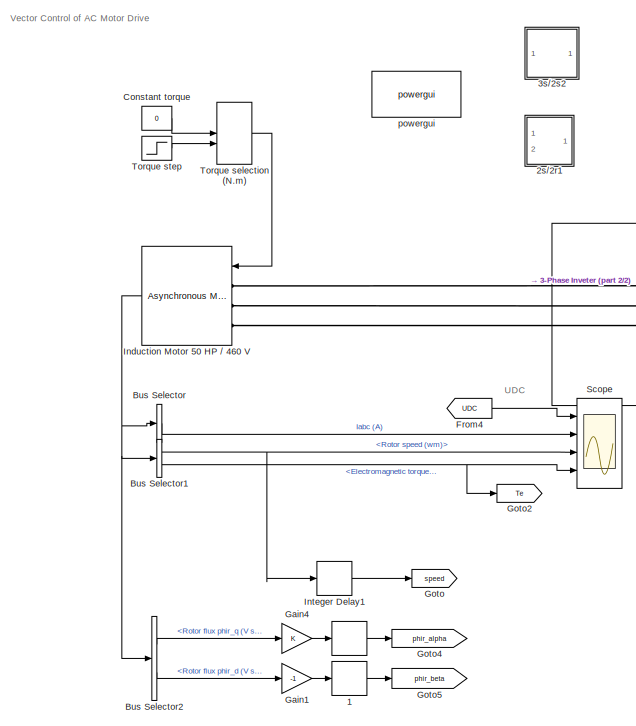
[diagram: root canvas - part 1/2, left side, full height]
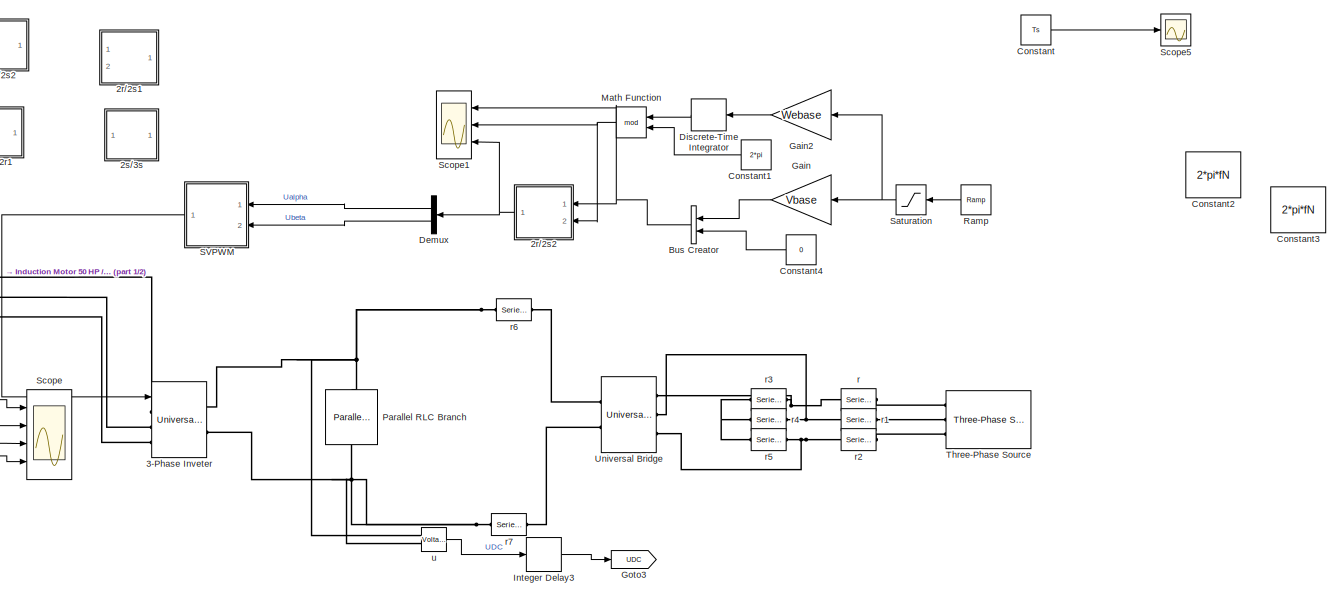
[diagram: root canvas - part 2/2, center side, full height]
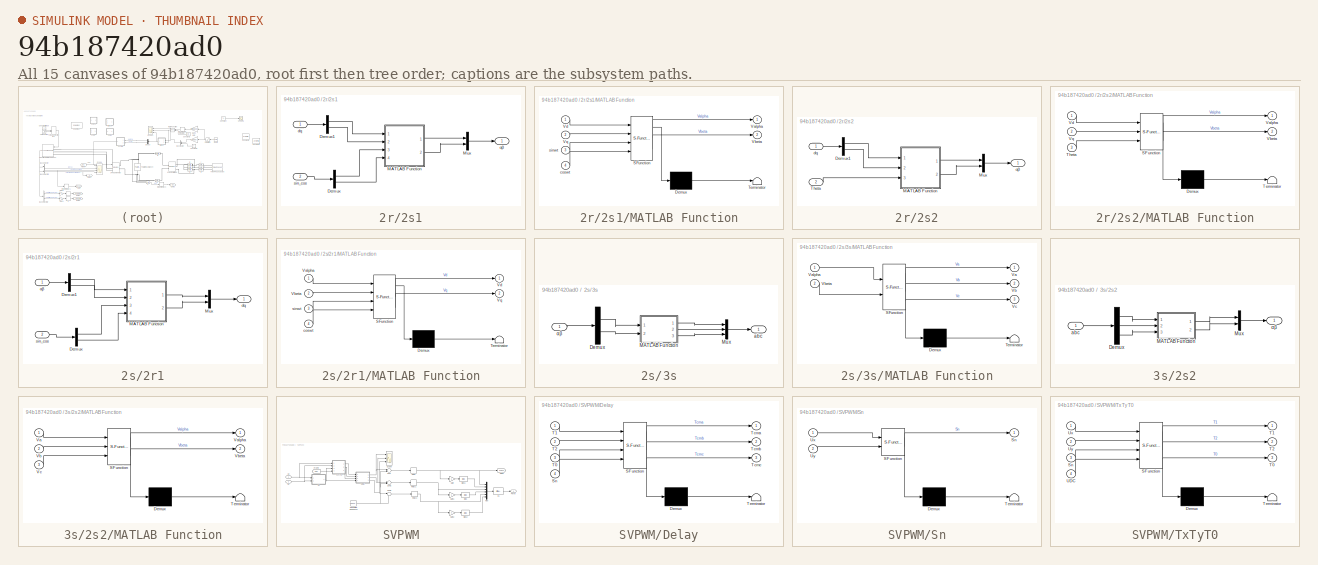
[diagram: thumbnail index - all 15 canvases of the model, root first then tree order]
MODEL slx_94b187420ad0
KIND model
CONFIG AbsTol = auto
CONFIG EnableMultiTasking = off
CONFIG FixedStep = Ts
CONFIG InitFcn = Ts=1e-6;\n%resolute=100;\n\nrun('MotorParamInit_IM.m');\n\n\n
CONFIG MaxStep = auto
CONFIG MinStep = auto
CONFIG PreLoadFcn = %MotorParamInit_IM.m;
CONFIG RelTol = 1e-3
CONFIG SampleTimeConstraint = Unconstrained
CONFIG Solver = ode23
CONFIG SolverName = ode23
CONFIG StartTime = 0.0
CONFIG StopTime = 20e-3*5
BLOCK [Delay]  
  InitialCondition = 0
  InputPortMap = u0
  Ports = [1, 1]
  SampleTime = Ts
BLOCK [Delay]  1
  InitialCondition = 0
  InputPortMap = u0
  Ports = [1, 1]
  SampleTime = Ts
BLOCK [SubSystem] 2r//2s1
  Ports = [2, 1]
  RequestExecContextInheritance = off
BLOCK [Demux] 2r//2s1/Demux
  DisplayOption = bar
  Outputs = 2
  Ports = [1, 2]
BLOCK [Demux] 2r//2s1/Demux1
  DisplayOption = bar
  Outputs = 2
  Ports = [1, 2]
BLOCK [SubSystem] 2r//2s1/MATLAB Function
  ErrorFcn = Stateflow.Translate.translate
  PermitHierarchicalResolution = ExplicitOnly
  Ports = [4, 2]
  RequestExecContextInheritance = off
  SFBlockType = MATLAB Function
  TreatAsAtomicUnit = on
BLOCK [Demux] 2r//2s1/MATLAB Function/ Demux 
  Outputs = 1
  Ports = [1, 1]
BLOCK [S-Function] 2r//2s1/MATLAB Function/ SFunction 
  EnableBusSupport = on
  FunctionName = sf_sfun
  PortCounts = [4 3]
  Ports = [4, 3]
  SFcnIsStateOwnerBlock = off
  SFunctionDeploymentMode = off
  Tag = Stateflow S-Function 17
BLOCK [Terminator] 2r//2s1/MATLAB Function/ Terminator 
BLOCK [Outport] 2r//2s1/MATLAB Function/Valpha
  IconDisplay = Port number
BLOCK [Outport] 2r//2s1/MATLAB Function/Vbeta
  IconDisplay = Port number
  Port = 2
BLOCK [Inport] 2r//2s1/MATLAB Function/Vd
  IconDisplay = Port number
BLOCK [Inport] 2r//2s1/MATLAB Function/Vq
  IconDisplay = Port number
  Port = 2
BLOCK [Inport] 2r//2s1/MATLAB Function/coswt
  IconDisplay = Port number
  Port = 4
BLOCK [Inport] 2r//2s1/MATLAB Function/sinwt
  IconDisplay = Port number
  Port = 3
BLOCK [Mux] 2r//2s1/Mux
  DisplayOption = bar
  Inputs = 2
  Ports = [2, 1]
BLOCK [Inport] 2r//2s1/dq
  IconDisplay = Port number
BLOCK [Inport] 2r//2s1/sin_cos
  IconDisplay = Port number
  Port = 2
BLOCK [Outport] 2r//2s1/αβ
  IconDisplay = Port number
BLOCK [SubSystem] 2r//2s2
  Ports = [2, 1]
  RequestExecContextInheritance = off
BLOCK [Demux] 2r//2s2/Demux1
  DisplayOption = bar
  Outputs = 2
  Ports = [1, 2]
BLOCK [SubSystem] 2r//2s2/MATLAB Function
  ErrorFcn = Stateflow.Translate.translate
  PermitHierarchicalResolution = ExplicitOnly
  Ports = [3, 2]
  RequestExecContextInheritance = off
  SFBlockType = MATLAB Function
  TreatAsAtomicUnit = on
BLOCK [Demux] 2r//2s2/MATLAB Function/ Demux 
  Outputs = 1
  Ports = [1, 1]
BLOCK [S-Function] 2r//2s2/MATLAB Function/ SFunction 
  EnableBusSupport = on
  FunctionName = sf_sfun
  PortCounts = [3 3]
  Ports = [3, 3]
  SFcnIsStateOwnerBlock = off
  SFunctionDeploymentMode = off
  Tag = Stateflow S-Function 2
BLOCK [Terminator] 2r//2s2/MATLAB Function/ Terminator 
BLOCK [Inport] 2r//2s2/MATLAB Function/Theta
  IconDisplay = Port number
  Port = 3
BLOCK [Outport] 2r//2s2/MATLAB Function/Valpha
  IconDisplay = Port number
BLOCK [Outport] 2r//2s2/MATLAB Function/Vbeta
  IconDisplay = Port number
  Port = 2
BLOCK [Inport] 2r//2s2/MATLAB Function/Vd
  IconDisplay = Port number
BLOCK [Inport] 2r//2s2/MATLAB Function/Vq
  IconDisplay = Port number
  Port = 2
BLOCK [Mux] 2r//2s2/Mux
  DisplayOption = bar
  Inputs = 2
  Ports = [2, 1]
BLOCK [Inport] 2r//2s2/Theta
  IconDisplay = Port number
  Port = 2
BLOCK [Inport] 2r//2s2/dq
  IconDisplay = Port number
BLOCK [Outport] 2r//2s2/αβ
  IconDisplay = Port number
BLOCK [SubSystem] 2s//2r1
  Ports = [2, 1]
  RequestExecContextInheritance = off
BLOCK [Demux] 2s//2r1/Demux
  DisplayOption = bar
  Outputs = 2
  Ports = [1, 2]
BLOCK [Demux] 2s//2r1/Demux1
  DisplayOption = bar
  Outputs = 2
  Ports = [1, 2]
BLOCK [SubSystem] 2s//2r1/MATLAB Function
  ErrorFcn = Stateflow.Translate.translate
  PermitHierarchicalResolution = ExplicitOnly
  Ports = [4, 2]
  RequestExecContextInheritance = off
  SFBlockType = MATLAB Function
  TreatAsAtomicUnit = on
BLOCK [Demux] 2s//2r1/MATLAB Function/ Demux 
  Outputs = 1
  Ports = [1, 1]
BLOCK [S-Function] 2s//2r1/MATLAB Function/ SFunction 
  EnableBusSupport = on
  FunctionName = sf_sfun
  PortCounts = [4 3]
  Ports = [4, 3]
  SFcnIsStateOwnerBlock = off
  SFunctionDeploymentMode = off
  Tag = Stateflow S-Function 18
BLOCK [Terminator] 2s//2r1/MATLAB Function/ Terminator 
BLOCK [Inport] 2s//2r1/MATLAB Function/Valpha
  IconDisplay = Port number
BLOCK [Inport] 2s//2r1/MATLAB Function/Vbeta
  IconDisplay = Port number
  Port = 2
BLOCK [Outport] 2s//2r1/MATLAB Function/Vd
  IconDisplay = Port number
BLOCK [Outport] 2s//2r1/MATLAB Function/Vq
  IconDisplay = Port number
  Port = 2
BLOCK [Inport] 2s//2r1/MATLAB Function/coswt
  IconDisplay = Port number
  Port = 4
BLOCK [Inport] 2s//2r1/MATLAB Function/sinwt
  IconDisplay = Port number
  Port = 3
BLOCK [Mux] 2s//2r1/Mux
  DisplayOption = bar
  Inputs = 2
  Ports = [2, 1]
BLOCK [Outport] 2s//2r1/dq
  IconDisplay = Port number
BLOCK [Inport] 2s//2r1/sin_cos
  IconDisplay = Port number
  Port = 2
BLOCK [Inport] 2s//2r1/αβ
  IconDisplay = Port number
BLOCK [SubSystem] 2s//3s
  Ports = [1, 1]
  RequestExecContextInheritance = off
BLOCK [Demux] 2s//3s/Demux
  DisplayOption = bar
  Outputs = 2
  Ports = [1, 2]
BLOCK [SubSystem] 2s//3s/MATLAB Function
  ErrorFcn = Stateflow.Translate.translate
  PermitHierarchicalResolution = ExplicitOnly
  Ports = [2, 3]
  RequestExecContextInheritance = off
  SFBlockType = MATLAB Function
  TreatAsAtomicUnit = on
BLOCK [Demux] 2s//3s/MATLAB Function/ Demux 
  Outputs = 1
  Ports = [1, 1]
BLOCK [S-Function] 2s//3s/MATLAB Function/ SFunction 
  EnableBusSupport = on
  FunctionName = sf_sfun
  PortCounts = [2 4]
  Ports = [2, 4]
  SFcnIsStateOwnerBlock = off
  SFunctionDeploymentMode = off
  Tag = Stateflow S-Function 6
BLOCK [Terminator] 2s//3s/MATLAB Function/ Terminator 
BLOCK [Outport] 2s//3s/MATLAB Function/Va
  IconDisplay = Port number
BLOCK [Inport] 2s//3s/MATLAB Function/Valpha
  IconDisplay = Port number
BLOCK [Outport] 2s//3s/MATLAB Function/Vb
  IconDisplay = Port number
  Port = 2
BLOCK [Inport] 2s//3s/MATLAB Function/Vbeta
  IconDisplay = Port number
  Port = 2
BLOCK [Outport] 2s//3s/MATLAB Function/Vc
  IconDisplay = Port number
  Port = 3
BLOCK [Mux] 2s//3s/Mux
  DisplayOption = bar
  Inputs = 3
  Ports = [3, 1]
BLOCK [Outport] 2s//3s/abc
  IconDisplay = Port number
BLOCK [Inport] 2s//3s/αβ
  IconDisplay = Port number
BLOCK [Reference] 3-Phase Inveter  REF=powerlib/Power
Electronics/Universal Bridge
  Ports = [1, 0, 0, 0, 0, 3, 2]
  SourceBlock = powerlib/Power\nElectronics/Universal Bridge
  SourceProductBaseCode = PS
  SourceProductName = Simscape Electrical
  SourceType = Universal Bridge
BLOCK [SubSystem] 3s//2s2
  Ports = [1, 1]
  RequestExecContextInheritance = off
BLOCK [Demux] 3s//2s2/Demux
  DisplayOption = bar
  Outputs = 3
  Ports = [1, 3]
BLOCK [SubSystem] 3s//2s2/MATLAB Function
  ErrorFcn = Stateflow.Translate.translate
  PermitHierarchicalResolution = ExplicitOnly
  Ports = [3, 2]
  RequestExecContextInheritance = off
  SFBlockType = MATLAB Function
  TreatAsAtomicUnit = on
BLOCK [Demux] 3s//2s2/MATLAB Function/ Demux 
  Outputs = 1
  Ports = [1, 1]
BLOCK [S-Function] 3s//2s2/MATLAB Function/ SFunction 
  EnableBusSupport = on
  FunctionName = sf_sfun
  PortCounts = [3 3]
  Ports = [3, 3]
  SFcnIsStateOwnerBlock = off
  SFunctionDeploymentMode = off
  Tag = Stateflow S-Function 8
BLOCK [Terminator] 3s//2s2/MATLAB Function/ Terminator 
BLOCK [Inport] 3s//2s2/MATLAB Function/Va
  IconDisplay = Port number
BLOCK [Outport] 3s//2s2/MATLAB Function/Valpha
  IconDisplay = Port number
BLOCK [Inport] 3s//2s2/MATLAB Function/Vb
  IconDisplay = Port number
  Port = 2
BLOCK [Outport] 3s//2s2/MATLAB Function/Vbeta
  IconDisplay = Port number
  Port = 2
BLOCK [Inport] 3s//2s2/MATLAB Function/Vc
  IconDisplay = Port number
  Port = 3
BLOCK [Mux] 3s//2s2/Mux
  DisplayOption = bar
  Inputs = 2
  Ports = [2, 1]
BLOCK [Inport] 3s//2s2/abc
  IconDisplay = Port number
BLOCK [Outport] 3s//2s2/αβ
  IconDisplay = Port number
BLOCK [BusCreator] Bus Creator
  DisplayOption = bar
  InheritFromInputs = on
  Inputs = 2
  Ports = [2, 1]
BLOCK [BusSelector] Bus Selector
  OutputAsBus = on
  OutputSignals = Stator measurements.Stator current is_a (A),Stator measurements.Stator current is_b (A),Stator measurements.Stator current is_c (A)
  Ports = [1, 1]
BLOCK [BusSelector] Bus Selector1
  OutputAsBus = off
  OutputSignals = Mechanical.Rotor speed (wm),Mechanical.Electromagnetic torque Te (N*m)
  Ports = [1, 2]
BLOCK [BusSelector] Bus Selector2
  OutputAsBus = off
  OutputSignals = Rotor measurements.Rotor flux phir_q (V s),Rotor measurements.Rotor flux phir_d (V s)
  Ports = [1, 2]
BLOCK [Constant] Constant
  Value = Ts
BLOCK [Constant] Constant torque
  SampleTime = Ts
  Value = 0
BLOCK [Constant] Constant1
  Value = 2*pi
BLOCK [Constant] Constant2
  Value = 2*pi*fN
BLOCK [Constant] Constant3
  Value = 2*pi*fN
BLOCK [Constant] Constant4
  Value = 0
BLOCK [Demux] Demux
  DisplayOption = bar
  Outputs = 2
  Ports = [1, 2]
BLOCK [DiscreteIntegrator] Discrete-Time Integrator
  ICPrevOutput = DiscIntNeverNeededParam
  ICPrevScaledInput = DiscIntNeverNeededParam
  InitialConditionSetting = Auto
  Ports = [1, 1]
  SampleTime = Ts
BLOCK [From] From4
  CloseFcn = tagdialog Close
  GotoTag = UDC
  TagVisibility = global
BLOCK [Gain] Gain
  Gain = Vbase
  OutDataTypeStr = Inherit: Inherit via internal rule
  ParamDataTypeStr = Inherit: Inherit via internal rule
  SaturateOnIntegerOverflow = off
BLOCK [Gain] Gain1
  Gain = -1
  OutDataTypeStr = Inherit: Inherit via internal rule
  ParamDataTypeStr = Inherit: Inherit via internal rule
  SaturateOnIntegerOverflow = off
BLOCK [Gain] Gain2
  Gain = Webase
  OutDataTypeStr = Inherit: Inherit via internal rule
  ParamDataTypeStr = Inherit: Inherit via internal rule
  SaturateOnIntegerOverflow = off
BLOCK [Gain] Gain4
  OutDataTypeStr = Inherit: Inherit via internal rule
  ParamDataTypeStr = Inherit: Inherit via internal rule
  SaturateOnIntegerOverflow = off
BLOCK [Goto] Goto
  GotoTag = speed
  TagVisibility = global
BLOCK [Goto] Goto2
  GotoTag = Te
  TagVisibility = global
BLOCK [Goto] Goto3
  GotoTag = UDC
  TagVisibility = global
BLOCK [Goto] Goto4
  GotoTag = phir_alpha
  TagVisibility = global
BLOCK [Goto] Goto5
  GotoTag = phir_beta
  TagVisibility = global
BLOCK [Reference] Induction Motor 50 HP // 460 V  REF=powerlib/Machines/Asynchronous Machine
SI Units
  AttributesFormatString = \n
  Ports = [1, 1, 0, 0, 0, 3]
  SourceBlock = powerlib/Machines/Asynchronous Machine\nSI Units
  SourceProductBaseCode = PS
  SourceProductName = Simscape Electrical
  SourceType = Asynchronous Machine
BLOCK [Delay] Integer Delay1
  InitialCondition = 0
  InputPortMap = u0
  Ports = [1, 1]
  SampleTime = Ts
BLOCK [Delay] Integer Delay3
  DelayLength = 1
  InitialCondition = 0
  InputPortMap = u0
  Ports = [1, 1]
  SampleTime = Ts
BLOCK [Math] Math Function
  Operator = mod
  Ports = [2, 1]
  SignedPower = off
BLOCK [Reference] Parallel RLC Branch  REF=powerlib/Elements/Parallel RLC Branch
  AttributesFormatString = \n
  Ports = [0, 0, 0, 0, 0, 1, 1]
  SourceBlock = powerlib/Elements/Parallel RLC Branch
  SourceProductBaseCode = PS
  SourceProductName = Simscape Electrical
  SourceType = Parallel RLC Branch
BLOCK [Reference] Ramp  REF=simulink/Sources/Ramp
  Ports = [0, 1]
  SourceBlock = simulink/Sources/Ramp
  SourceProductBaseCode = SL
  SourceProductName = Simulink
  SourceType = Ramp
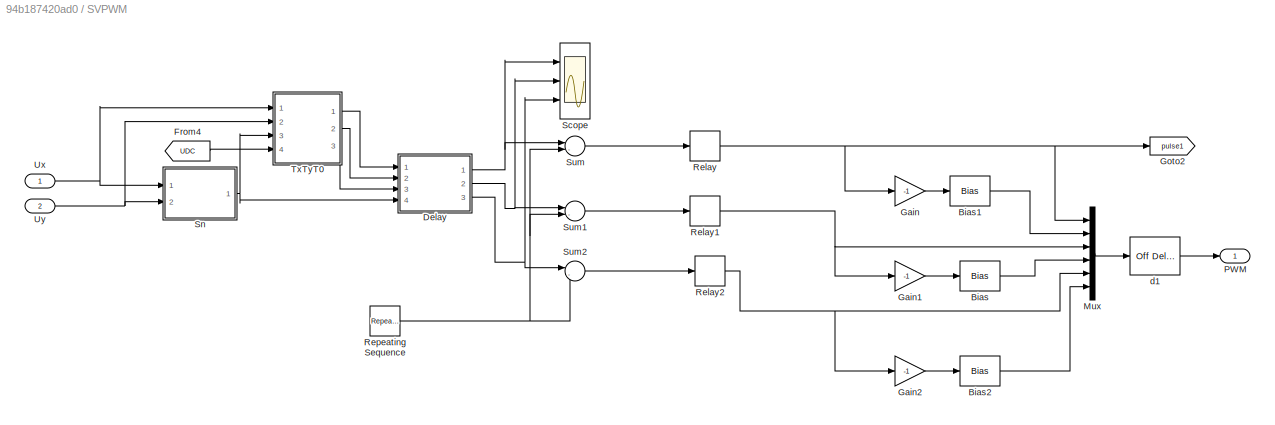
BLOCK [SubSystem] SVPWM
  Ports = [2, 1]
  RequestExecContextInheritance = off
BLOCK [Bias] SVPWM/Bias
  Bias = 1
  SaturateOnIntegerOverflow = off
BLOCK [Bias] SVPWM/Bias1
  Bias = 1
  SaturateOnIntegerOverflow = off
BLOCK [Bias] SVPWM/Bias2
  Bias = 1
  SaturateOnIntegerOverflow = off
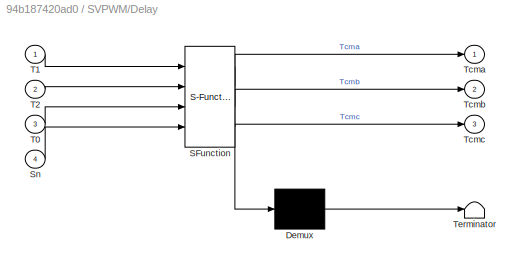
BLOCK [SubSystem] SVPWM/Delay
  ErrorFcn = Stateflow.Translate.translate
  PermitHierarchicalResolution = ExplicitOnly
  Ports = [4, 3]
  RequestExecContextInheritance = off
  SFBlockType = MATLAB Function
  TreatAsAtomicUnit = on
BLOCK [Demux] SVPWM/Delay/ Demux 
  Outputs = 1
  Ports = [1, 1]
BLOCK [S-Function] SVPWM/Delay/ SFunction 
  EnableBusSupport = on
  FunctionName = sf_sfun
  PortCounts = [4 4]
  Ports = [4, 4]
  SFcnIsStateOwnerBlock = off
  SFunctionDeploymentMode = off
  Tag = Stateflow S-Function 4
BLOCK [Terminator] SVPWM/Delay/ Terminator 
BLOCK [Inport] SVPWM/Delay/Sn
  IconDisplay = Port number
  Port = 4
BLOCK [Inport] SVPWM/Delay/T0
  IconDisplay = Port number
  Port = 3
BLOCK [Inport] SVPWM/Delay/T1
  IconDisplay = Port number
BLOCK [Inport] SVPWM/Delay/T2
  IconDisplay = Port number
  Port = 2
BLOCK [Outport] SVPWM/Delay/Tcma
  IconDisplay = Port number
BLOCK [Outport] SVPWM/Delay/Tcmb
  IconDisplay = Port number
  Port = 2
BLOCK [Outport] SVPWM/Delay/Tcmc
  IconDisplay = Port number
  Port = 3
BLOCK [From] SVPWM/From4
  CloseFcn = tagdialog Close
  GotoTag = UDC
  TagVisibility = global
BLOCK [Gain] SVPWM/Gain
  Gain = -1
  OutDataTypeStr = Inherit: Inherit via internal rule
  ParamDataTypeStr = Inherit: Inherit via internal rule
  SaturateOnIntegerOverflow = off
BLOCK [Gain] SVPWM/Gain1
  Gain = -1
  OutDataTypeStr = Inherit: Inherit via internal rule
  ParamDataTypeStr = Inherit: Inherit via internal rule
  SaturateOnIntegerOverflow = off
BLOCK [Gain] SVPWM/Gain2
  Gain = -1
  OutDataTypeStr = Inherit: Inherit via internal rule
  ParamDataTypeStr = Inherit: Inherit via internal rule
  SaturateOnIntegerOverflow = off
BLOCK [Goto] SVPWM/Goto2
  GotoTag = pulse1
  TagVisibility = global
BLOCK [Mux] SVPWM/Mux
  DisplayOption = bar
  Inputs = 6
  Ports = [6, 1]
BLOCK [Outport] SVPWM/PWM
  IconDisplay = Port number
BLOCK [Relay] SVPWM/Relay
  OffSwitchValue = 0
  OnSwitchValue = 0
BLOCK [Relay] SVPWM/Relay1
  OffSwitchValue = 0
  OnSwitchValue = 0
BLOCK [Relay] SVPWM/Relay2
  OffSwitchValue = 0
  OnSwitchValue = 0
BLOCK [Reference] SVPWM/Repeating Sequence  REF=simulink/Sources/Repeating
Sequence
  Ports = [0, 1]
  SourceBlock = simulink/Sources/Repeating\nSequence
  SourceProductBaseCode = SL
  SourceProductName = Simulink
  SourceType = Repeating table
BLOCK [Scope] SVPWM/Scope
  Floating = off
  NumInputPorts = 3
  Ports = [3]
  ScopeSpecificationString = Simulink.scopes.TimeScopeBlockCfg('CurrentConfiguration', extmgr.ConfigurationSet(extmgr.Configuration('Core','General UI',true),extmgr.Configuration('Core','Source UI',true),extmgr.Configuration('Sources','WiredSimulink',true,'DataLoggingVariableName','ScopeData16','DataLoggingSaveFormat','StructureWithTime','DataLoggingDecimation','1','DataLoggingDecimateData',true),extmgr.Configuration('Visuals...<+3052ch>
BLOCK [SubSystem] SVPWM/Sn
  ErrorFcn = Stateflow.Translate.translate
  PermitHierarchicalResolution = ExplicitOnly
  Ports = [2, 1]
  RequestExecContextInheritance = off
  SFBlockType = MATLAB Function
  TreatAsAtomicUnit = on
BLOCK [Demux] SVPWM/Sn/ Demux 
  Outputs = 1
  Ports = [1, 1]
BLOCK [S-Function] SVPWM/Sn/ SFunction 
  EnableBusSupport = on
  FunctionName = sf_sfun
  PortCounts = [2 2]
  Ports = [2, 2]
  SFcnIsStateOwnerBlock = off
  SFunctionDeploymentMode = off
  Tag = Stateflow S-Function 1
BLOCK [Terminator] SVPWM/Sn/ Terminator 
BLOCK [Outport] SVPWM/Sn/Sn
  IconDisplay = Port number
BLOCK [Inport] SVPWM/Sn/Ux
  IconDisplay = Port number
BLOCK [Inport] SVPWM/Sn/Uy
  IconDisplay = Port number
  Port = 2
BLOCK [Sum] SVPWM/Sum
  IconShape = round
  InputSameDT = off
  Inputs = |-+
  OutDataTypeStr = Inherit: Inherit via internal rule
  Ports = [2, 1]
  SaturateOnIntegerOverflow = off
BLOCK [Sum] SVPWM/Sum1
  IconShape = round
  InputSameDT = off
  Inputs = |-+
  OutDataTypeStr = Inherit: Inherit via internal rule
  Ports = [2, 1]
  SaturateOnIntegerOverflow = off
BLOCK [Sum] SVPWM/Sum2
  IconShape = round
  InputSameDT = off
  Inputs = |-+
  OutDataTypeStr = Inherit: Inherit via internal rule
  Ports = [2, 1]
  SaturateOnIntegerOverflow = off
BLOCK [SubSystem] SVPWM/TxTyT0
  ErrorFcn = Stateflow.Translate.translate
  PermitHierarchicalResolution = ExplicitOnly
  Ports = [4, 3]
  RequestExecContextInheritance = off
  SFBlockType = MATLAB Function
  TreatAsAtomicUnit = on
BLOCK [Demux] SVPWM/TxTyT0/ Demux 
  Outputs = 1
  Ports = [1, 1]
BLOCK [S-Function] SVPWM/TxTyT0/ SFunction 
  EnableBusSupport = on
  FunctionName = sf_sfun
  PortCounts = [4 4]
  Ports = [4, 4]
  SFcnIsStateOwnerBlock = off
  SFunctionDeploymentMode = off
  Tag = Stateflow S-Function 3
BLOCK [Terminator] SVPWM/TxTyT0/ Terminator 
BLOCK [Inport] SVPWM/TxTyT0/Sn
  IconDisplay = Port number
  Port = 3
BLOCK [Outport] SVPWM/TxTyT0/T0
  IconDisplay = Port number
  Port = 3
BLOCK [Outport] SVPWM/TxTyT0/T1
  IconDisplay = Port number
BLOCK [Outport] SVPWM/TxTyT0/T2
  IconDisplay = Port number
  Port = 2
BLOCK [Inport] SVPWM/TxTyT0/UDC
  IconDisplay = Port number
  Port = 4
BLOCK [Inport] SVPWM/TxTyT0/Ux
  IconDisplay = Port number
BLOCK [Inport] SVPWM/TxTyT0/Uy
  IconDisplay = Port number
  Port = 2
BLOCK [Inport] SVPWM/Ux
  IconDisplay = Port number
BLOCK [Inport] SVPWM/Uy
  IconDisplay = Port number
  Port = 2
BLOCK [Reference] SVPWM/d1  REF=powerlib_extras/Discrete 
Control Blocks/Discrete
On//Off Delay
  Ports = [1, 1]
  SourceBlock = powerlib_extras/Discrete \nControl Blocks/Discrete\nOn//Off Delay
  SourceProductBaseCode = PS
  SourceProductName = Simscape Electrical
  SourceType = Discrete On/Off Delay
BLOCK [Saturate] Saturation
  InputPortMap = u0
  LowerLimit = -1
  Ports = [1, 1]
  UpperLimit = 1
BLOCK [Scope] Scope
  Floating = off
  NumInputPorts = 4
  Ports = [4]
  ScopeSpecificationString = C++SS(StrPVP('Location','[5, 34, 1925, 993]'),StrPVP('Open','off'),StrPVP('ZoomMode','yonly'),MxPVP('AxesTitles',54,'struct(''axes1'',''%<SignalLabel>'',''axes2'',''%<SignalLabel>'',''axes3'',''%<SignalLabel>'',''axes4'',''%<SignalLabel>'')'),MxPVP('ScopeGraphics',57,'struct(''FigureColor'',''[0.5 0.5 0.5]'',''AxesColor'',''[0 0 0]'',''AxesTickColor'',''[1 1 1]'',''LineColors'',''[1 1 0;1 0 1;0 1 ...<+467ch>
BLOCK [Scope] Scope1
  Floating = off
  NumInputPorts = 3
  Ports = [3]
  ScopeSpecificationString = Simulink.scopes.TimeScopeBlockCfg('CurrentConfiguration', extmgr.ConfigurationSet(extmgr.Configuration('Core','General UI',true,'FigureColor',[1 1 1]),extmgr.Configuration('Core','Source UI',true),extmgr.Configuration('Sources','WiredSimulink',true,'DataLoggingVariableName','ScopeData1'),extmgr.Configuration('Visuals','Time Domain',true,'SerializedDisplays',{struct('MinYLimReal','-38.78359','MaxYL...<+3085ch>
BLOCK [Scope] Scope5
  Floating = off
  NumInputPorts = 1
  Ports = [1]
  ScopeSpecificationString = Simulink.scopes.TimeScopeBlockCfg('CurrentConfiguration', extmgr.ConfigurationSet(extmgr.Configuration('Core','General UI',true,'FigureColor',[1 1 1]),extmgr.Configuration('Core','Source UI',true),extmgr.Configuration('Sources','WiredSimulink',true,'DataLoggingVariableName','ScopeData5'),extmgr.Configuration('Visuals','Time Domain',true,'SerializedDisplays',{struct('MinYLimReal','0.01764','MaxYLim...<+1599ch>
BLOCK [Reference] Three-Phase Source  REF=powerlib/Electrical
Sources/Three-Phase Source
  Ports = [0, 0, 0, 0, 0, 0, 3]
  SourceBlock = powerlib/Electrical\nSources/Three-Phase Source
  SourceProductBaseCode = PS
  SourceProductName = Simscape Electrical
  SourceType = Three-Phase Source
BLOCK [ManualSwitch] Torque selection (N.m)
BLOCK [Step] Torque step
  After = 5
  SampleTime = Ts
BLOCK [Reference] Universal Bridge  REF=powerlib/Power
Electronics/Universal Bridge
  Ports = [0, 0, 0, 0, 0, 3, 2]
  SourceBlock = powerlib/Power\nElectronics/Universal Bridge
  SourceProductBaseCode = PS
  SourceProductName = Simscape Electrical
  SourceType = Universal Bridge
BLOCK [Reference] powergui  REF=powerlib/powergui
  Ports = []
  Priority = 2
  SourceBlock = powerlib/powergui
  SourceProductBaseCode = PS
  SourceProductName = Simscape Electrical
  SourceType = PSB option menu block
BLOCK [Reference] r  REF=powerlib/Elements/Series RLC Branch
  Ports = [0, 0, 0, 0, 0, 1, 1]
  SourceBlock = powerlib/Elements/Series RLC Branch
  SourceProductBaseCode = PS
  SourceProductName = Simscape Electrical
  SourceType = Series RLC Branch
BLOCK [Reference] r1  REF=powerlib/Elements/Series RLC Branch
  Ports = [0, 0, 0, 0, 0, 1, 1]
  SourceBlock = powerlib/Elements/Series RLC Branch
  SourceProductBaseCode = PS
  SourceProductName = Simscape Electrical
  SourceType = Series RLC Branch
BLOCK [Reference] r2  REF=powerlib/Elements/Series RLC Branch
  Ports = [0, 0, 0, 0, 0, 1, 1]
  SourceBlock = powerlib/Elements/Series RLC Branch
  SourceProductBaseCode = PS
  SourceProductName = Simscape Electrical
  SourceType = Series RLC Branch
BLOCK [Reference] r3  REF=powerlib/Elements/Series RLC Branch
  Ports = [0, 0, 0, 0, 0, 1, 1]
  SourceBlock = powerlib/Elements/Series RLC Branch
  SourceProductBaseCode = PS
  SourceProductName = Simscape Electrical
  SourceType = Series RLC Branch
BLOCK [Reference] r4  REF=powerlib/Elements/Series RLC Branch
  Ports = [0, 0, 0, 0, 0, 1, 1]
  SourceBlock = powerlib/Elements/Series RLC Branch
  SourceProductBaseCode = PS
  SourceProductName = Simscape Electrical
  SourceType = Series RLC Branch
BLOCK [Reference] r5  REF=powerlib/Elements/Series RLC Branch
  Ports = [0, 0, 0, 0, 0, 1, 1]
  SourceBlock = powerlib/Elements/Series RLC Branch
  SourceProductBaseCode = PS
  SourceProductName = Simscape Electrical
  SourceType = Series RLC Branch
BLOCK [Reference] r6  REF=powerlib/Elements/Series RLC Branch
  Ports = [0, 0, 0, 0, 0, 1, 1]
  SourceBlock = powerlib/Elements/Series RLC Branch
  SourceProductBaseCode = PS
  SourceProductName = Simscape Electrical
  SourceType = Series RLC Branch
BLOCK [Reference] r7  REF=powerlib/Elements/Series RLC Branch
  Ports = [0, 0, 0, 0, 0, 1, 1]
  SourceBlock = powerlib/Elements/Series RLC Branch
  SourceProductBaseCode = PS
  SourceProductName = Simscape Electrical
  SourceType = Series RLC Branch
BLOCK [Reference] u  REF=powerlib/Measurements/Voltage Measurement
  AttributesFormatString = \n
  Ports = [0, 1, 0, 0, 0, 2]
  SourceBlock = powerlib/Measurements/Voltage Measurement
  SourceProductBaseCode = PS
  SourceProductName = Simscape Electrical
  SourceType = Voltage Measurement
  Tag = PoWeRsYsTeMmEaSuReMeNt
ANNOTATION (root): UDC
ANNOTATION (root): Vector Control of AC Motor Drive
LINE  1:1 -> Goto5:1
LINE  :1 -> Goto4:1
LINE 2r//2s1/Demux1:1 -> 2r//2s1/MATLAB Function:1
LINE 2r//2s1/Demux1:2 -> 2r//2s1/MATLAB Function:2
LINE 2r//2s1/Demux:1 -> 2r//2s1/MATLAB Function:3
LINE 2r//2s1/Demux:2 -> 2r//2s1/MATLAB Function:4
LINE 2r//2s1/MATLAB Function:1 -> 2r//2s1/Mux:1
LINE 2r//2s1/MATLAB Function:2 -> 2r//2s1/Mux:2
LINE 2r//2s1/Mux:1 -> 2r//2s1/αβ:1
LINE 2r//2s1/dq:1 -> 2r//2s1/Demux1:1
LINE 2r//2s1/sin_cos:1 -> 2r//2s1/Demux:1
LINE 2r//2s2/Demux1:1 -> 2r//2s2/MATLAB Function:1
LINE 2r//2s2/Demux1:2 -> 2r//2s2/MATLAB Function:2
LINE 2r//2s2/MATLAB Function:1 -> 2r//2s2/Mux:1
LINE 2r//2s2/MATLAB Function:2 -> 2r//2s2/Mux:2
LINE 2r//2s2/Mux:1 -> 2r//2s2/αβ:1
LINE 2r//2s2/Theta:1 -> 2r//2s2/MATLAB Function:3
LINE 2r//2s2/dq:1 -> 2r//2s2/Demux1:1
NET 2r//2s2:1 -> Demux:1, Scope1:3
LINE 2s//2r1/Demux1:1 -> 2s//2r1/MATLAB Function:1
LINE 2s//2r1/Demux1:2 -> 2s//2r1/MATLAB Function:2
LINE 2s//2r1/Demux:1 -> 2s//2r1/MATLAB Function:3
LINE 2s//2r1/Demux:2 -> 2s//2r1/MATLAB Function:4
LINE 2s//2r1/MATLAB Function:1 -> 2s//2r1/Mux:1
LINE 2s//2r1/MATLAB Function:2 -> 2s//2r1/Mux:2
LINE 2s//2r1/Mux:1 -> 2s//2r1/dq:1
LINE 2s//2r1/sin_cos:1 -> 2s//2r1/Demux:1
LINE 2s//2r1/αβ:1 -> 2s//2r1/Demux1:1
LINE 2s//3s/Demux:1 -> 2s//3s/MATLAB Function:1
LINE 2s//3s/Demux:2 -> 2s//3s/MATLAB Function:2
LINE 2s//3s/MATLAB Function:1 -> 2s//3s/Mux:1
LINE 2s//3s/MATLAB Function:2 -> 2s//3s/Mux:2
LINE 2s//3s/MATLAB Function:3 -> 2s//3s/Mux:3
LINE 2s//3s/Mux:1 -> 2s//3s/abc:1
LINE 2s//3s/αβ:1 -> 2s//3s/Demux:1
LINE 3s//2s2/Demux:1 -> 3s//2s2/MATLAB Function:1
LINE 3s//2s2/Demux:2 -> 3s//2s2/MATLAB Function:2
LINE 3s//2s2/Demux:3 -> 3s//2s2/MATLAB Function:3
LINE 3s//2s2/MATLAB Function:1 -> 3s//2s2/Mux:1
LINE 3s//2s2/MATLAB Function:2 -> 3s//2s2/Mux:2
LINE 3s//2s2/Mux:1 -> 3s//2s2/αβ:1
LINE 3s//2s2/abc:1 -> 3s//2s2/Demux:1
NET Bus Creator:1 -> 2r//2s2:1, Scope1:1
NET Bus Selector1:1 -> Integer Delay1:1, Scope:3
NET Bus Selector1:2 -> Goto2:1, Scope:4
LINE Bus Selector2:1 -> Gain4:1
LINE Bus Selector2:2 -> Gain1:1
LINE Bus Selector:1 -> Scope:2
LINE Constant torque:1 -> Torque selection (N.m):1
LINE Constant1:1 -> Math Function:2
LINE Constant4:1 -> Bus Creator:2
LINE Constant:1 -> Scope5:1
LINE Demux:1 -> SVPWM:1
LINE Demux:2 -> SVPWM:2
LINE Discrete-Time Integrator:1 -> Math Function:1
LINE From4:1 -> Scope:1
LINE Gain1:1 ->  1:1
LINE Gain2:1 -> Discrete-Time Integrator:1
LINE Gain4:1 ->  :1
LINE Gain:1 -> Bus Creator:1
NET Induction Motor 50 HP // 460 V:1 -> Bus Selector1:1, Bus Selector2:1, Bus Selector:1
LINE Integer Delay1:1 -> Goto:1
LINE Integer Delay3:1 -> Goto3:1
NET Math Function:1 -> 2r//2s2:2, Scope1:2
LINE Ramp:1 -> Saturation:1
LINE SVPWM/Bias1:1 -> SVPWM/Mux:2
LINE SVPWM/Bias2:1 -> SVPWM/Mux:6
LINE SVPWM/Bias:1 -> SVPWM/Mux:4
NET SVPWM/Delay:1 -> SVPWM/Scope:1, SVPWM/Sum:1
NET SVPWM/Delay:2 -> SVPWM/Scope:2, SVPWM/Sum1:1
NET SVPWM/Delay:3 -> SVPWM/Scope:3, SVPWM/Sum2:1
LINE SVPWM/From4:1 -> SVPWM/TxTyT0:4
LINE SVPWM/Gain1:1 -> SVPWM/Bias:1
LINE SVPWM/Gain2:1 -> SVPWM/Bias2:1
LINE SVPWM/Gain:1 -> SVPWM/Bias1:1
LINE SVPWM/Mux:1 -> SVPWM/d1:1
NET SVPWM/Relay1:1 -> SVPWM/Gain1:1, SVPWM/Mux:3
NET SVPWM/Relay2:1 -> SVPWM/Gain2:1, SVPWM/Mux:5
NET SVPWM/Relay:1 -> SVPWM/Gain:1, SVPWM/Goto2:1, SVPWM/Mux:1
NET SVPWM/Repeating Sequence:1 -> SVPWM/Sum1:2, SVPWM/Sum2:2, SVPWM/Sum:2
NET SVPWM/Sn:1 -> SVPWM/Delay:4, SVPWM/TxTyT0:3
LINE SVPWM/Sum1:1 -> SVPWM/Relay1:1
LINE SVPWM/Sum2:1 -> SVPWM/Relay2:1
LINE SVPWM/Sum:1 -> SVPWM/Relay:1
LINE SVPWM/TxTyT0:1 -> SVPWM/Delay:1
LINE SVPWM/TxTyT0:2 -> SVPWM/Delay:2
LINE SVPWM/TxTyT0:3 -> SVPWM/Delay:3
NET SVPWM/Ux:1 -> SVPWM/Sn:1, SVPWM/TxTyT0:1
NET SVPWM/Uy:1 -> SVPWM/Sn:2, SVPWM/TxTyT0:2
LINE SVPWM/d1:1 -> SVPWM/PWM:1
LINE SVPWM:1 -> 3-Phase Inveter:1
NET Saturation:1 -> Gain2:1, Gain:1
LINE Torque selection (N.m):1 -> Induction Motor 50 HP // 460 V:1
LINE Torque step:1 -> Torque selection (N.m):2
LINE u:1 -> Integer Delay3:1
PLINE 3-Phase Inveter:LConn1 -- Induction Motor 50 HP // 460 V:LConn1
PLINE 3-Phase Inveter:LConn2 -- Induction Motor 50 HP // 460 V:LConn2
PLINE 3-Phase Inveter:LConn3 -- Induction Motor 50 HP // 460 V:LConn3
PNET net1: 3-Phase Inveter:RConn1 -- Parallel RLC Branch:LConn1 -- r6:LConn1 -- u:LConn1
PNET net2: 3-Phase Inveter:RConn2 -- Parallel RLC Branch:RConn1 -- r7:LConn1 -- u:LConn2
PLINE Three-Phase Source:RConn1 -- r:RConn1
PLINE Three-Phase Source:RConn2 -- r1:RConn1
PLINE Three-Phase Source:RConn3 -- r2:RConn1
PNET net3: Universal Bridge:LConn1 -- r3:RConn1 -- r:LConn1
PNET net4: Universal Bridge:LConn2 -- r1:LConn1 -- r4:RConn1
PNET net5: Universal Bridge:LConn3 -- r2:LConn1 -- r5:RConn1
PLINE Universal Bridge:RConn1 -- r6:RConn1
PLINE Universal Bridge:RConn2 -- r7:RConn1
PNET net6: r3:LConn1 -- r4:LConn1 -- r5:LConn1
note: NET lines group one-source signal fan-out (src -> all destinations, sorted); 1:1 wires keep LINE; PNET lines group multi-terminal physical nets as a canonical sorted terminal list (undirected conserving connections); 2-terminal nets keep the pairwise PLINE form
CHART SVPWM/Sn states=1 transitions=1
  STATE_LABEL 'eML_blk_kernel()'
  STATE_LABEL 'SCRIPT:\nfunction Sn = S(Ux,Uy)\ntheta=atan2(Uy,Ux)*180/pi;\nif theta>=0&&theta<60\n    Sn=1;\nelseif theta>=60&&theta<120\n    Sn=2;\nelseif theta>=120&&theta<180\n    Sn=3;\nelseif theta>=-180&&theta<-120\n    Sn=4;\nelseif theta>=-120&&theta<-60\n    Sn=5;\nelse Sn=6;\nend'
CHART 2r//2s2/MATLAB Function states=1 transitions=1
  STATE_LABEL 'eML_blk_kernel()'
  STATE_LABEL 'SCRIPT:\nfunction [Valpha, Vbeta] = fcn(Vd, Vq, Theta)\n%#codegen\nsinTheta = sin(Theta);\nCosTheta = cos(Theta);\nValpha = Vd*CosTheta - Vq*sinTheta;\nVbeta  = Vd*sinTheta + Vq*CosTheta;'
CHART SVPWM/TxTyT0 states=1 transitions=1
  STATE_LABEL 'eML_blk_kernel()'
  STATE_LABEL 'SCRIPT:\nfunction [T1,T2,T0]=T(Ux,Uy,Sn,UDC)\nTs=1/5000;\nUdc=UDC;\n\nX=sqrt(3)*Ts/Udc*Uy;\nY=sqrt(3)*Ts/2/Udc*(sqrt(3)*Ux+Uy);\nZ=sqrt(3)*Ts/2/Udc*(-sqrt(3)*Ux+Uy);\n\nif Sn==1\n    T1=-Z;T2=X;\nelseif Sn==2;\n    T1=Z;T2=Y;\nelseif Sn==3;\n    T1=X;T2=-Y;\nelseif Sn==4;\n    T1=-X;T2=Z;\nelseif Sn==5;\n    T1=-Y;T2=-Z;\nelse T1=Y;T2=-X;\nend\n    \nif T1+T2>Ts\n    a=T1;b=T2;\n    T1=a*Ts/(a+b);\n    T2=b*Ts/(a+b);\nend\n...<+32ch>'
CHART SVPWM/Delay states=1 transitions=1
  STATE_LABEL 'eML_blk_kernel()'
  STATE_LABEL 'SCRIPT:\nfunction [Tcma,Tcmb,Tcmc]=D(T1,T2,T0,Sn)\nT=1/5000;\nton1=0.25*T0;\nton2=ton1+T1/2;\nton3=ton2+T2/2;\nif Sn==1\n    Tcma=ton1;Tcmb=ton2;Tcmc=ton3;\nelseif Sn==2;\n    Tcma=ton2;Tcmb=ton1;Tcmc=ton3;\nelseif Sn==3;\n    Tcma=ton3;Tcmb=ton1;Tcmc=ton2;\nelseif Sn==4;\n    Tcma=ton3;Tcmb=ton2;Tcmc=ton1;\nelseif Sn==5;\n    Tcma=ton2;Tcmb=ton3;Tcmc=ton1;\nelse Tcma=ton1;Tcmb=ton3;Tcmc=ton2;\nend\n        \n      ...<+3ch>'
CHART 2s//3s/MATLAB Function states=1 transitions=1
  STATE_LABEL 'eML_blk_kernel()'
  STATE_LABEL 'SCRIPT:\nfunction [Va, Vb, Vc] = Park(Valpha, Vbeta)\n%#codegen\nVa = sqrt(2/3)*Valpha;\nVb = -Valpha/sqrt(6) + Vbeta/sqrt(2);\nVc = -Valpha/sqrt(6) - Vbeta/sqrt(2);'
CHART 3s//2s2/MATLAB Function states=1 transitions=1
  STATE_LABEL 'eML_blk_kernel()'
  STATE_LABEL 'SCRIPT:\nfunction [Valpha, Vbeta] = Park(Va, Vb, Vc)\n%#codegen\nValpha = sqrt(2/3)*(Va - Vb/2 -Vc/2);\nVbeta  = sqrt(2/3)*(sqrt(3)*Vb/2 - sqrt(3)*Vc/2);'
CHART 2r//2s1/MATLAB Function states=1 transitions=1
  STATE_LABEL 'eML_blk_kernel()'
  STATE_LABEL 'SCRIPT:\nfunction [Valpha, Vbeta] = fcn(Vd, Vq, sinwt, coswt)\n%#codegen\n\nValpha = Vd*coswt - Vq*sinwt;\nVbeta  = Vd*sinwt + Vq*coswt;'
CHART 2s//2r1/MATLAB Function states=1 transitions=1
  STATE_LABEL 'eML_blk_kernel()'
  STATE_LABEL 'SCRIPT:\nfunction [Vd, Vq] = fcn(Valpha, Vbeta, sinwt, coswt)\n%#codegen\n\nVd =  Valpha*coswt + Vbeta*sinwt;\nVq = -Valpha*sinwt + Vbeta*coswt;'
